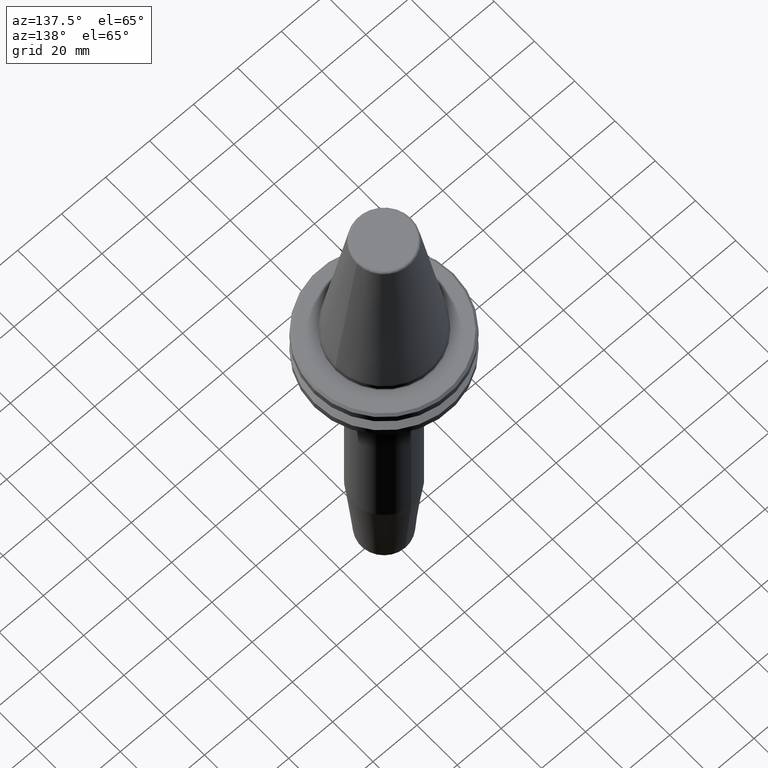
[diagram: clean part render]
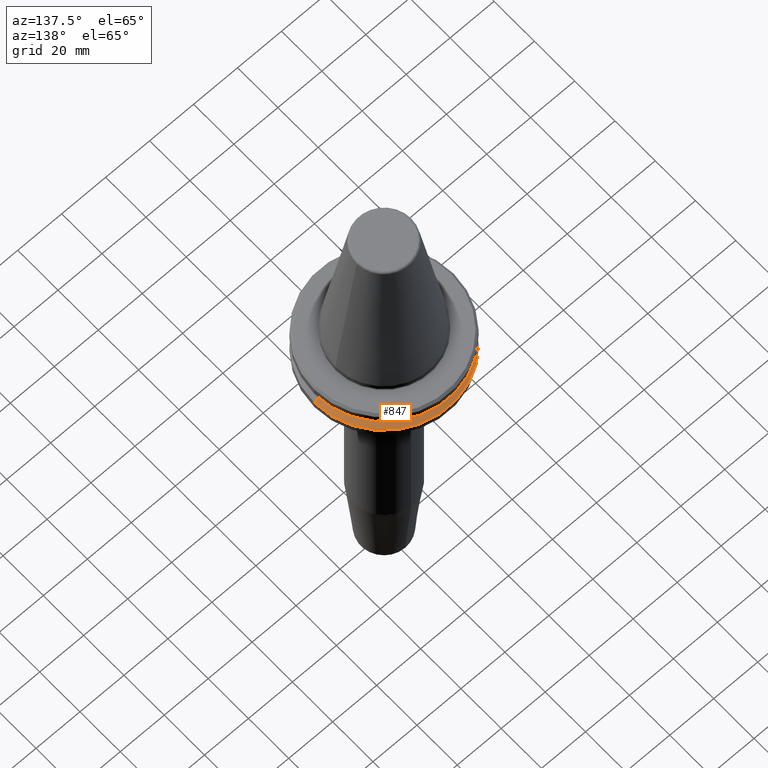
[diagram: same view with one face highlighted and labeled with its STEP entity id]
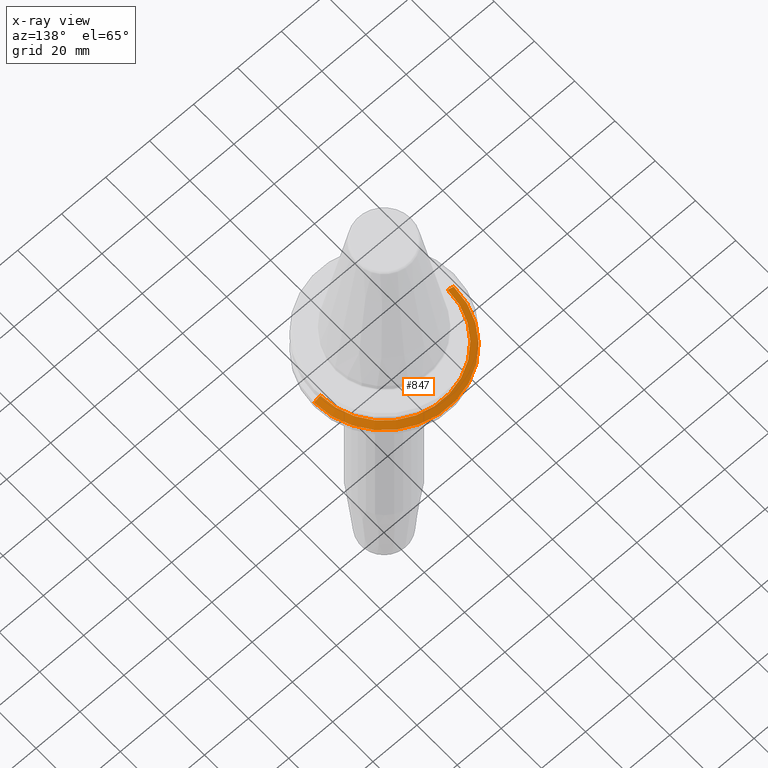
[diagram: x-ray of the same camera — body ghosted, the highlighted face saturated]
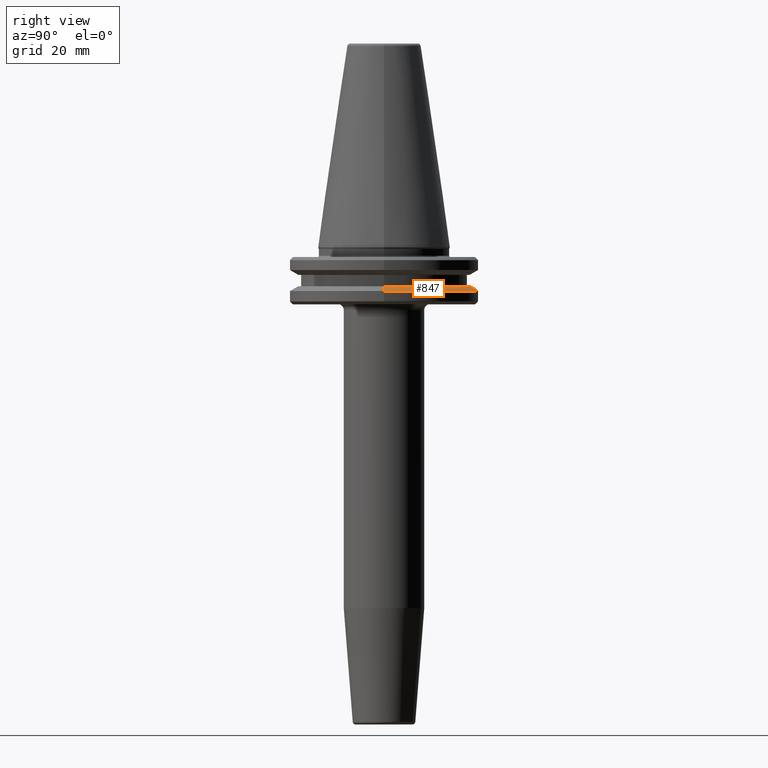
[diagram: same view with one face highlighted and labeled with its STEP entity id]
A machine part, auxiliary view. The second image highlights one B-rep face of the part: STEP entity #847.
The next image is the same camera in x-ray: the body ghosted, the highlighted face saturated — about 0% of this face is hidden behind the body in this view.
A second angle (right view) of the same face is appended — the face is thin or edge-on in the first view.
In plain terms, the highlighted conical surface has half-angle 60 deg.
Its self-contained STEP definition (entity closure, byte-faithful):
#2 = EDGE_CURVE ( 'NONE', #353, #40, #518, .T. ) ;
#4 = CIRCLE ( 'NONE', #832, 31.75000000000000000 ) ;
#19 = CARTESIAN_POINT ( 'NONE',  ( 31.75000000000000000, 0.0000000000000000000, -14.62183664205671200 ) ) ;
#40 = VERTEX_POINT ( 'NONE', #747 ) ;
#164 = CARTESIAN_POINT ( 'NONE',  ( -28.94089653438085100, 0.0000000000000000000, -13.00000000000001100 ) ) ;
#171 = DIRECTION ( 'NONE',  ( 0.0000000000000000000, 0.0000000000000000000, -1.000000000000000000 ) ) ;
#196 = DIRECTION ( 'NONE',  ( -1.000000000000000000, 0.0000000000000000000, 0.0000000000000000000 ) ) ;
#254 = VECTOR ( 'NONE', #1247, 999.9999999999998900 ) ;
#255 = ORIENTED_EDGE ( 'NONE', *, *, #2, .F. ) ;
#261 = CONICAL_SURFACE ( 'NONE', #1179, 28.94089653438085100, 1.047197551196604300 ) ;
#323 = CARTESIAN_POINT ( 'NONE',  ( 28.94089653438085100, 3.716245608910634800E-015, -13.00000000000001100 ) ) ;
#353 = VERTEX_POINT ( 'NONE', #603 ) ;
#388 = ORIENTED_EDGE ( 'NONE', *, *, #930, .F. ) ;
#397 = DIRECTION ( 'NONE',  ( 0.8660254037844420400, 1.060575238724911000E-016, -0.4999999999999943900 ) ) ;
#404 = DIRECTION ( 'NONE',  ( -0.0000000000000000000, -0.0000000000000000000, 1.000000000000000000 ) ) ;
#498 = ORIENTED_EDGE ( 'NONE', *, *, #927, .T. ) ;
#518 = LINE ( 'NONE', #164, #254 ) ;
#548 = ORIENTED_EDGE ( 'NONE', *, *, #611, .T. ) ;
#589 = DIRECTION ( 'NONE',  ( -0.0000000000000000000, -0.0000000000000000000, 1.000000000000000000 ) ) ;
#594 = CARTESIAN_POINT ( 'NONE',  ( 0.0000000000000000000, 0.0000000000000000000, -14.62183664205671200 ) ) ;
#603 = CARTESIAN_POINT ( 'NONE',  ( -28.94089653438085100, 0.0000000000000000000, -13.00000000000001100 ) ) ;
#611 = EDGE_CURVE ( 'NONE', #731, #40, #4, .T. ) ;
#700 = CIRCLE ( 'NONE', #764, 28.94089653438085100 ) ;
#725 = EDGE_LOOP ( 'NONE', ( #388, #498, #548, #255 ) ) ;
#731 = VERTEX_POINT ( 'NONE', #19 ) ;
#747 = CARTESIAN_POINT ( 'NONE',  ( -31.75000000000000000, 3.888253587292846500E-015, -14.62183664205671200 ) ) ;
#764 = AXIS2_PLACEMENT_3D ( 'NONE', #976, #404, #1063 ) ;
#782 = DIRECTION ( 'NONE',  ( 1.000000000000000000, 0.0000000000000000000, 0.0000000000000000000 ) ) ;
#801 = FACE_OUTER_BOUND ( 'NONE', #725, .T. ) ;
#832 = AXIS2_PLACEMENT_3D ( 'NONE', #594, #589, #782 ) ;
#847 = ADVANCED_FACE ( 'NONE', ( #801 ), #261, .T. ) ;
#927 = EDGE_CURVE ( 'NONE', #1000, #731, #1190, .T. ) ;
#930 = EDGE_CURVE ( 'NONE', #1000, #353, #700, .T. ) ;
#940 = VECTOR ( 'NONE', #397, 999.9999999999998900 ) ;
#976 = CARTESIAN_POINT ( 'NONE',  ( 0.0000000000000000000, 0.0000000000000000000, -13.00000000000001100 ) ) ;
#1000 = VERTEX_POINT ( 'NONE', #323 ) ;
#1063 = DIRECTION ( 'NONE',  ( 1.000000000000000000, 0.0000000000000000000, 0.0000000000000000000 ) ) ;
#1160 = CARTESIAN_POINT ( 'NONE',  ( 0.0000000000000000000, 0.0000000000000000000, -13.00000000000001100 ) ) ;
#1161 = CARTESIAN_POINT ( 'NONE',  ( 28.94089653438085100, 3.544237630528423800E-015, -13.00000000000001100 ) ) ;
#1179 = AXIS2_PLACEMENT_3D ( 'NONE', #1160, #171, #196 ) ;
#1190 = LINE ( 'NONE', #1161, #940 ) ;
#1247 = DIRECTION ( 'NONE',  ( -0.8660254037844420400, 0.0000000000000000000, -0.4999999999999943900 ) ) ;